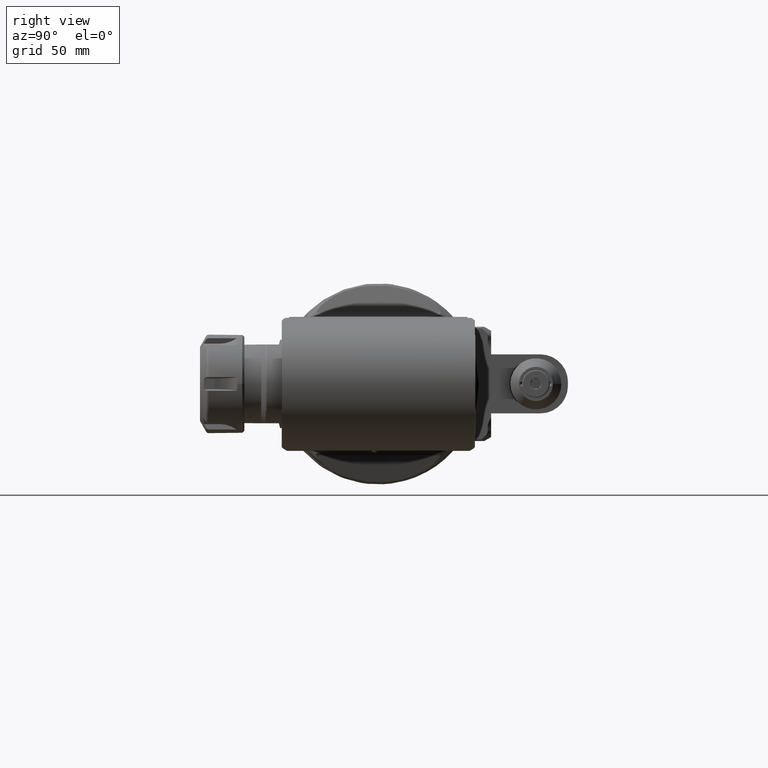
[diagram: clean part render]
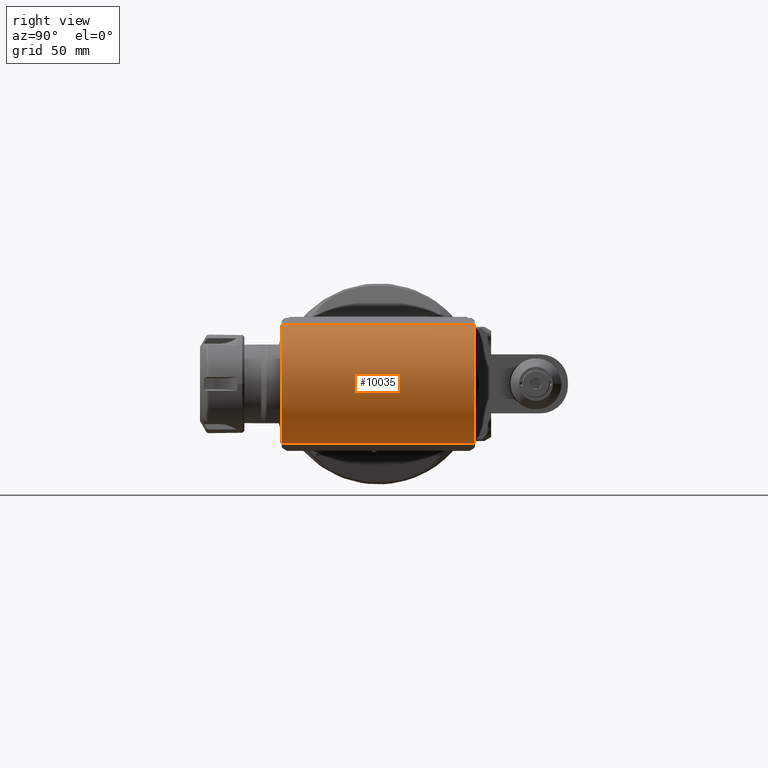
[diagram: same view with one face highlighted and labeled with its STEP entity id]
A machine part, right view. The second image highlights one B-rep face of the part: STEP entity #10035.
In plain terms, the highlighted cylindrical surface (partial cylindrical patch) has radius 31 mm, axis along (-0, 1, 0).
Its self-contained STEP definition (entity closure, byte-faithful):
#678=LINE('',#14527,#1439);
#681=LINE('',#14595,#1442);
#1439=VECTOR('',#11682,98.);
#1442=VECTOR('',#11701,98.);
#2179=CYLINDRICAL_SURFACE('',#10648,31.);
#2310=FACE_OUTER_BOUND('',#2843,.T.);
#2843=EDGE_LOOP('',(#6723,#6724,#6725,#6726));
#3446=CIRCLE('',#10646,31.);
#3448=CIRCLE('',#10649,31.);
#3932=VERTEX_POINT('',#14524);
#3933=VERTEX_POINT('',#14526);
#3938=VERTEX_POINT('',#14552);
#3949=VERTEX_POINT('',#14594);
#5081=EDGE_CURVE('',#3933,#3932,#678,.T.);
#5089=EDGE_CURVE('',#3933,#3938,#3446,.T.);
#5101=EDGE_CURVE('',#3949,#3938,#681,.T.);
#5102=EDGE_CURVE('',#3949,#3932,#3448,.T.);
#6723=ORIENTED_EDGE('',*,*,#5101,.T.);
#6724=ORIENTED_EDGE('',*,*,#5089,.F.);
#6725=ORIENTED_EDGE('',*,*,#5081,.T.);
#6726=ORIENTED_EDGE('',*,*,#5102,.F.);
#10035=ADVANCED_FACE('',(#2310),#2179,.T.);
#10646=AXIS2_PLACEMENT_3D('',#14553,#11694,#11695);
#10648=AXIS2_PLACEMENT_3D('',#14593,#11699,#11700);
#10649=AXIS2_PLACEMENT_3D('',#14596,#11702,#11703);
#11682=DIRECTION('',(0.,1.,0.));
#11694=DIRECTION('center_axis',(0.,-1.,0.));
#11695=DIRECTION('ref_axis',(0.207911690816993,0.,-0.978147600733968));
#11699=DIRECTION('center_axis',(0.,1.,0.));
#11700=DIRECTION('ref_axis',(1.,0.,0.));
#11701=DIRECTION('',(0.,-1.,0.));
#11702=DIRECTION('center_axis',(0.,1.,0.));
#11703=DIRECTION('ref_axis',(0.207911690816993,0.,0.978147600733968));
#14524=CARTESIAN_POINT('',(284.5083594153,49.,-30.32257562275));
#14526=CARTESIAN_POINT('',(284.5083594153,-49.,-30.32257562275));
#14527=CARTESIAN_POINT('',(284.5083594153,-49.,-30.32257562275));
#14552=CARTESIAN_POINT('',(284.5083594153,-49.,30.32257562275));
#14553=CARTESIAN_POINT('Origin',(278.063097,-49.,0.));
#14593=CARTESIAN_POINT('Origin',(278.063097,49.,0.));
#14594=CARTESIAN_POINT('',(284.5083594153,49.,30.32257562275));
#14595=CARTESIAN_POINT('',(284.5083594153,49.,30.32257562275));
#14596=CARTESIAN_POINT('Origin',(278.063097,49.,0.));